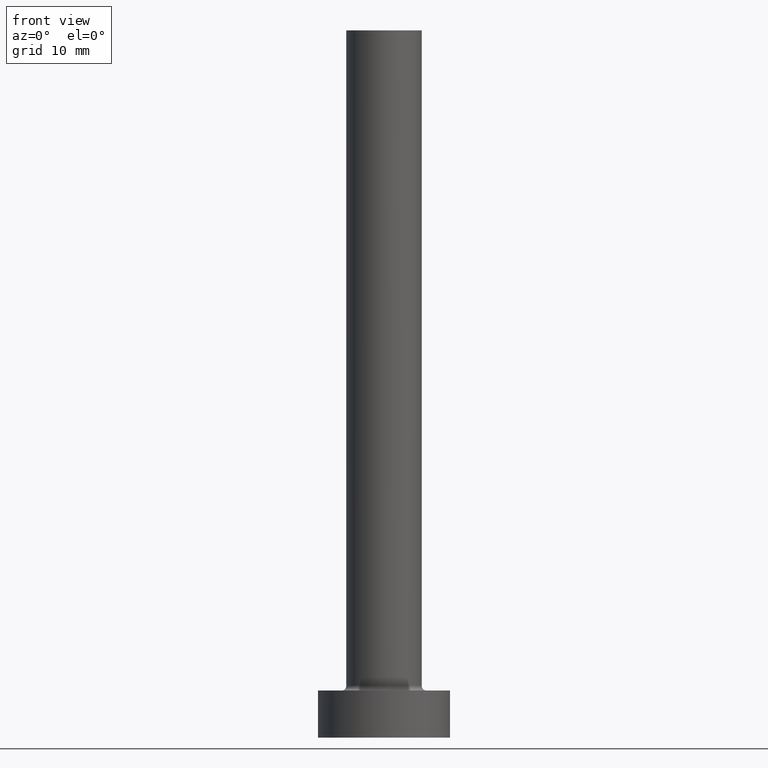
[diagram: clean part render]
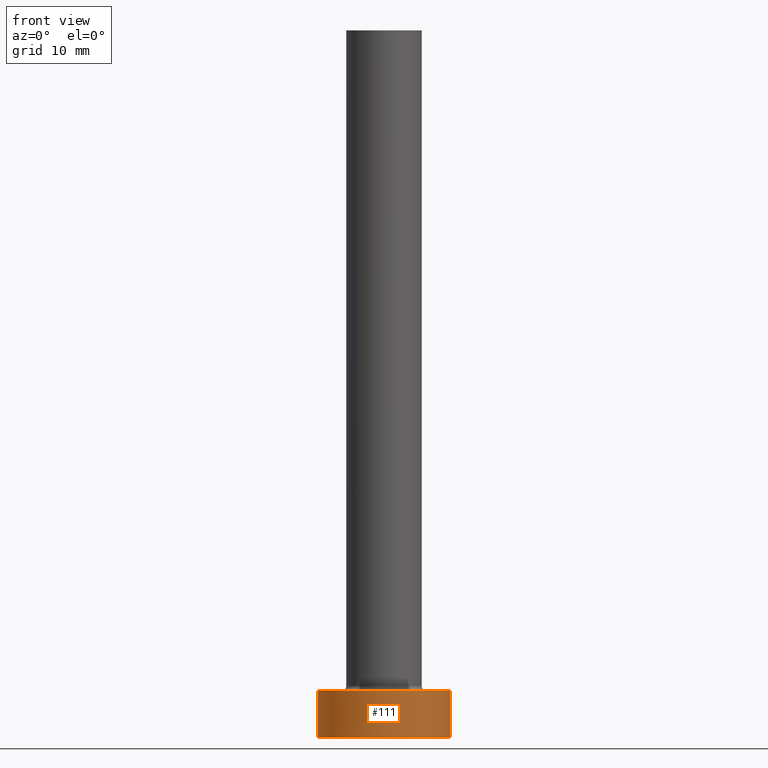
[diagram: same view with one face highlighted and labeled with its STEP entity id]
A machine part, front view. The second image highlights one B-rep face of the part: STEP entity #111.
In plain terms, the highlighted cylindrical surface (partial cylindrical patch) has radius 7 mm, axis along (-0, -0, -1).
Its self-contained STEP definition (entity closure, byte-faithful):
#22 = VERTEX_POINT ( 'NONE', #377 ) ;
#29 = DIRECTION ( 'NONE',  ( 0.000000000000000000, 0.000000000000000000, 1.000000000000000000 ) ) ;
#48 = CIRCLE ( 'NONE', #205, 7.000000000000000000 ) ;
#49 = ORIENTED_EDGE ( 'NONE', *, *, #341, .F. ) ;
#61 = VECTOR ( 'NONE', #410, 1000.000000000000000 ) ;
#62 = VECTOR ( 'NONE', #331, 1000.000000000000000 ) ;
#92 = CARTESIAN_POINT ( 'NONE',  ( 7.000000000000000000, 8.572527594031473190E-16, 5.000000000000000000 ) ) ;
#93 = FACE_OUTER_BOUND ( 'NONE', #343, .T. ) ;
#102 = LINE ( 'NONE', #254, #62 ) ;
#111 = ADVANCED_FACE ( 'NONE', ( #93 ), #389, .T. ) ;
#195 = EDGE_CURVE ( 'NONE', #22, #225, #444, .T. ) ;
#204 = DIRECTION ( 'NONE',  ( -1.000000000000000000, 0.000000000000000000, 0.000000000000000000 ) ) ;
#205 = AXIS2_PLACEMENT_3D ( 'NONE', #425, #460, #247 ) ;
#206 = DIRECTION ( 'NONE',  ( 1.000000000000000000, 0.000000000000000000, 0.000000000000000000 ) ) ;
#221 = ORIENTED_EDGE ( 'NONE', *, *, #450, .F. ) ;
#225 = VERTEX_POINT ( 'NONE', #260 ) ;
#247 = DIRECTION ( 'NONE',  ( 1.000000000000000000, 0.000000000000000000, 0.000000000000000000 ) ) ;
#254 = CARTESIAN_POINT ( 'NONE',  ( 7.000000000000000000, 8.572527594031473190E-16, 5.000000000000000000 ) ) ;
#255 = AXIS2_PLACEMENT_3D ( 'NONE', #345, #29, #206 ) ;
#260 = CARTESIAN_POINT ( 'NONE',  ( -7.000000000000000000, 0.000000000000000000, 0.000000000000000000 ) ) ;
#317 = DIRECTION ( 'NONE',  ( -0.000000000000000000, -0.000000000000000000, -1.000000000000000000 ) ) ;
#326 = ORIENTED_EDGE ( 'NONE', *, *, #404, .T. ) ;
#331 = DIRECTION ( 'NONE',  ( -0.000000000000000000, -0.000000000000000000, -1.000000000000000000 ) ) ;
#341 = EDGE_CURVE ( 'NONE', #442, #402, #102, .T. ) ;
#343 = EDGE_LOOP ( 'NONE', ( #49, #221, #443, #326 ) ) ;
#345 = CARTESIAN_POINT ( 'NONE',  ( 0.000000000000000000, 0.000000000000000000, 5.000000000000000000 ) ) ;
#354 = AXIS2_PLACEMENT_3D ( 'NONE', #382, #317, #204 ) ;
#377 = CARTESIAN_POINT ( 'NONE',  ( -7.000000000000000000, 0.000000000000000000, 5.000000000000000000 ) ) ;
#378 = CARTESIAN_POINT ( 'NONE',  ( -7.000000000000000000, 0.000000000000000000, 5.000000000000000000 ) ) ;
#381 = CARTESIAN_POINT ( 'NONE',  ( 7.000000000000000000, 8.572527594031473190E-16, 0.000000000000000000 ) ) ;
#382 = CARTESIAN_POINT ( 'NONE',  ( 0.000000000000000000, 0.000000000000000000, 5.000000000000000000 ) ) ;
#389 = CYLINDRICAL_SURFACE ( 'NONE', #354, 7.000000000000000000 ) ;
#400 = CIRCLE ( 'NONE', #255, 7.000000000000000000 ) ;
#402 = VERTEX_POINT ( 'NONE', #381 ) ;
#404 = EDGE_CURVE ( 'NONE', #225, #402, #48, .T. ) ;
#410 = DIRECTION ( 'NONE',  ( -0.000000000000000000, -0.000000000000000000, -1.000000000000000000 ) ) ;
#425 = CARTESIAN_POINT ( 'NONE',  ( 0.000000000000000000, 0.000000000000000000, 0.000000000000000000 ) ) ;
#442 = VERTEX_POINT ( 'NONE', #92 ) ;
#443 = ORIENTED_EDGE ( 'NONE', *, *, #195, .T. ) ;
#444 = LINE ( 'NONE', #378, #61 ) ;
#450 = EDGE_CURVE ( 'NONE', #22, #442, #400, .T. ) ;
#460 = DIRECTION ( 'NONE',  ( 0.000000000000000000, 0.000000000000000000, 1.000000000000000000 ) ) ;